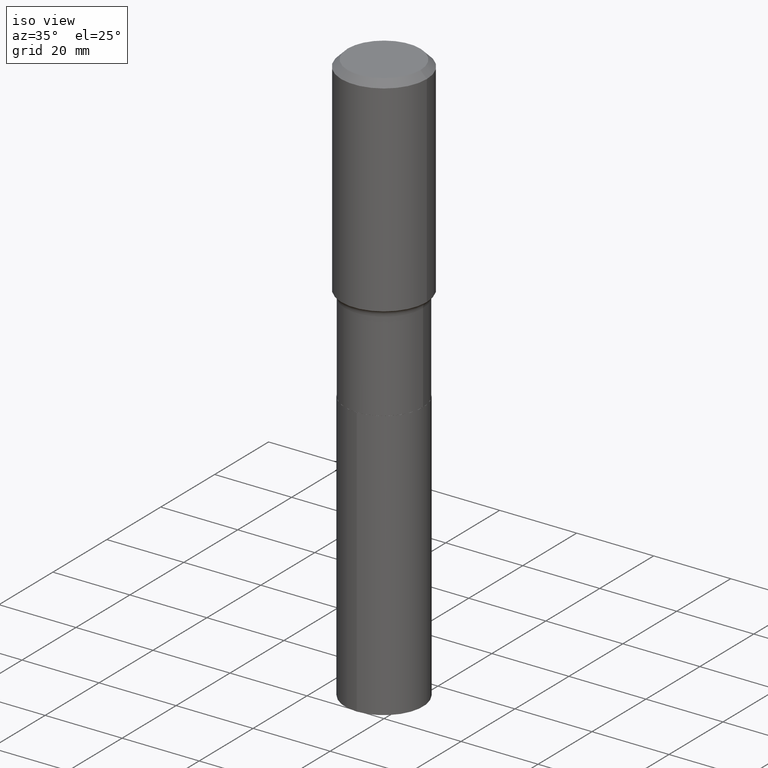
[diagram: clean part render]
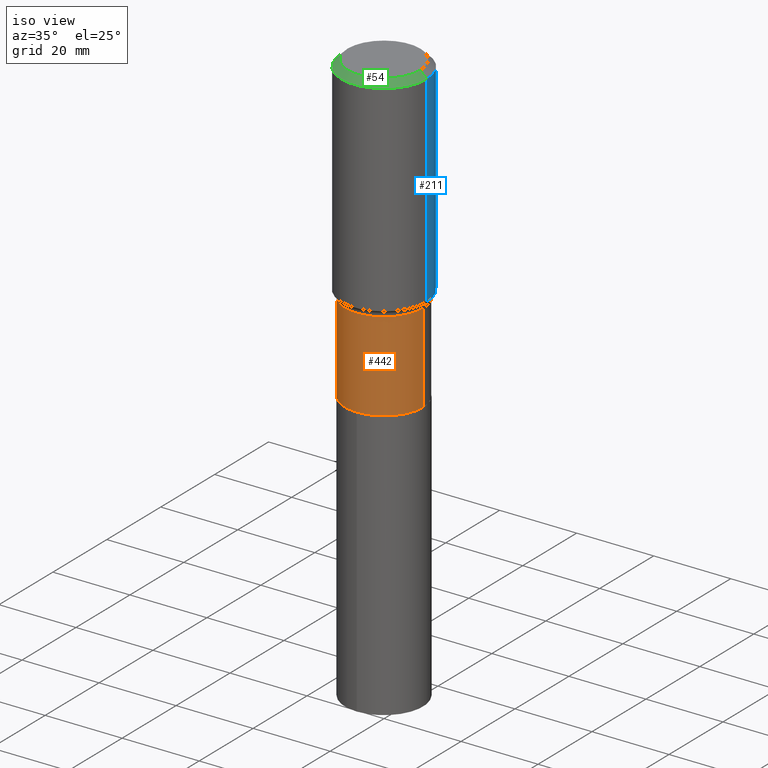
[diagram: same view with three faces highlighted in distinct colors, each labeled with its STEP entity id]
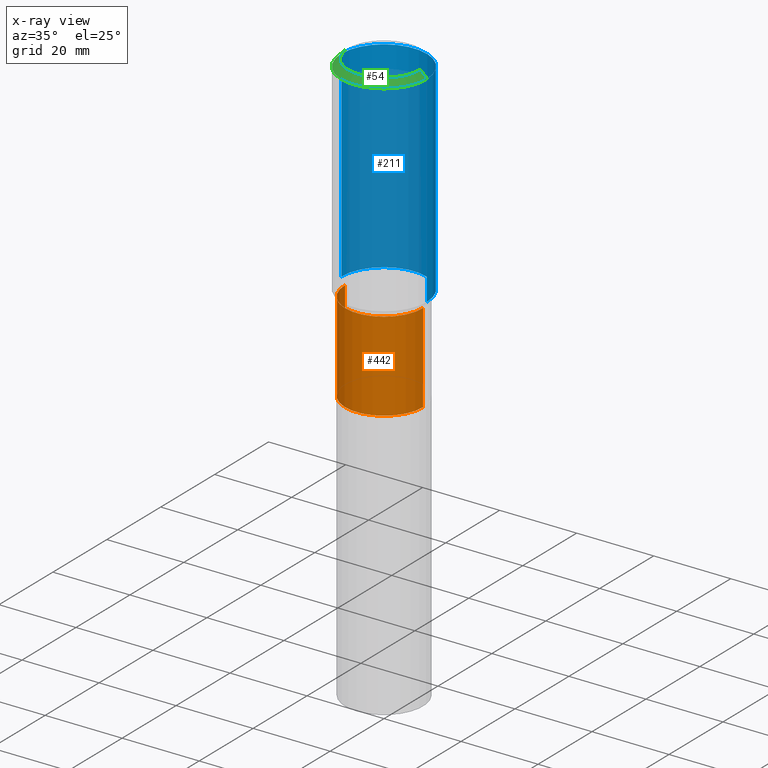
[diagram: x-ray of the same camera — body ghosted, the three highlighted faces saturated]
A machine part, iso view with three faces highlighted in distinct colors.
The next image is the same camera in x-ray (body ghosted, the three faces saturated) — at least one of them is partly hidden behind the body in this view.
Their STEP definitions:

[orange] entity #442 — the highlighted cylindrical surface (partial cylindrical patch) has radius 10.1206 mm, axis along (-0, 0, 1).
#45 = CARTESIAN_POINT ( 'NONE',  ( 0.3984499999999998598, -1.043918005500711173E-14, -2.193000000000000504 ) ) ;
#69 = DIRECTION ( 'NONE',  ( 1.000000000000000000, -6.982962677686268288E-15, 0.000000000000000000 ) ) ;
#88 = CARTESIAN_POINT ( 'NONE',  ( -0.3984500000000001374, -6.424584924570118002E-15, -3.108900000000000219 ) ) ;
#92 = CYLINDRICAL_SURFACE ( 'NONE', #461, 0.3984499999999999709 ) ;
#94 = CARTESIAN_POINT ( 'NONE',  ( 7.602717971548972402E-29, -1.085466633432945640E-14, -3.108900000000000219 ) ) ;
#105 = VERTEX_POINT ( 'NONE', #414 ) ;
#121 = CARTESIAN_POINT ( 'NONE',  ( 0.000000000000000000, 0.000000000000000000, 0.000000000000000000 ) ) ;
#126 = CARTESIAN_POINT ( 'NONE',  ( 0.3984499999999999709, -2.782361478924092573E-15, 1.942912636315890449E-29 ) ) ;
#127 = VERTEX_POINT ( 'NONE', #158 ) ;
#148 = ORIENTED_EDGE ( 'NONE', *, *, #238, .F. ) ;
#149 = LINE ( 'NONE', #192, #278 ) ;
#153 = CIRCLE ( 'NONE', #377, 0.3984499999999998598 ) ;
#158 = CARTESIAN_POINT ( 'NONE',  ( -0.3984499999999998598, -6.424584924570119580E-15, -2.193000000000000504 ) ) ;
#164 = DIRECTION ( 'NONE',  ( 1.000000000000000000, -6.982962677686265922E-15, 4.876176775795935793E-29 ) ) ;
#167 = LINE ( 'NONE', #126, #234 ) ;
#179 = EDGE_LOOP ( 'NONE', ( #213, #439, #370, #148 ) ) ;
#192 = CARTESIAN_POINT ( 'NONE',  ( -0.3984499999999999709, 2.831157530636118984E-15, -1.959949686712066901E-29 ) ) ;
#193 = EDGE_CURVE ( 'NONE', #458, #105, #233, .T. ) ;
#205 = DIRECTION ( 'NONE',  ( -2.445468806185136877E-29, 3.491481338843145188E-15, 1.000000000000000000 ) ) ;
#212 = DIRECTION ( 'NONE',  ( -2.445468806185136597E-29, 3.491481338843145583E-15, 1.000000000000000000 ) ) ;
#213 = ORIENTED_EDGE ( 'NONE', *, *, #296, .F. ) ;
#214 = AXIS2_PLACEMENT_3D ( 'NONE', #94, #325, #69 ) ;
#233 = CIRCLE ( 'NONE', #214, 0.3984500000000000819 ) ;
#234 = VECTOR ( 'NONE', #205, 39.37007874015748143 ) ;
#238 = EDGE_CURVE ( 'NONE', #127, #441, #153, .T. ) ;
#278 = VECTOR ( 'NONE', #453, 39.37007874015748143 ) ;
#296 = EDGE_CURVE ( 'NONE', #458, #127, #149, .T. ) ;
#325 = DIRECTION ( 'NONE',  ( -2.445468806185136597E-29, 3.491481338843145583E-15, 1.000000000000000000 ) ) ;
#353 = DIRECTION ( 'NONE',  ( -2.445468806185136597E-29, 3.491481338843145583E-15, 1.000000000000000000 ) ) ;
#368 = DIRECTION ( 'NONE',  ( 1.000000000000000000, -6.982962677686265133E-15, 0.000000000000000000 ) ) ;
#370 = ORIENTED_EDGE ( 'NONE', *, *, #451, .T. ) ;
#377 = AXIS2_PLACEMENT_3D ( 'NONE', #433, #212, #368 ) ;
#414 = CARTESIAN_POINT ( 'NONE',  ( 0.3984500000000000819, -1.363702781325355055E-14, -3.108900000000000219 ) ) ;
#433 = CARTESIAN_POINT ( 'NONE',  ( 5.362913091964004880E-29, -7.656818576083019153E-15, -2.193000000000000504 ) ) ;
#439 = ORIENTED_EDGE ( 'NONE', *, *, #193, .T. ) ;
#441 = VERTEX_POINT ( 'NONE', #45 ) ;
#442 = ADVANCED_FACE ( 'NONE', ( #463 ), #92, .T. ) ;
#451 = EDGE_CURVE ( 'NONE', #105, #441, #167, .T. ) ;
#453 = DIRECTION ( 'NONE',  ( -2.445468806185136877E-29, 3.491481338843145188E-15, 1.000000000000000000 ) ) ;
#458 = VERTEX_POINT ( 'NONE', #88 ) ;
#461 = AXIS2_PLACEMENT_3D ( 'NONE', #121, #353, #164 ) ;
#463 = FACE_OUTER_BOUND ( 'NONE', #179, .T. ) ;

[blue] entity #211 — the highlighted cylindrical surface (partial cylindrical patch) has radius 11.1125 mm, axis along (-0, 0, 1).
#2 = CARTESIAN_POINT ( 'NONE',  ( 0.4375000000000001110, -3.055046171487742475E-15, 2.133327339410722330E-29 ) ) ;
#33 = EDGE_CURVE ( 'NONE', #143, #281, #340, .T. ) ;
#34 = CARTESIAN_POINT ( 'NONE',  ( -0.4375000000000003331, -4.312243903027238069E-15, -2.125421175653907646 ) ) ;
#53 = CYLINDRICAL_SURFACE ( 'NONE', #183, 0.4375000000000001110 ) ;
#61 = VECTOR ( 'NONE', #242, 39.37007874015748143 ) ;
#65 = CARTESIAN_POINT ( 'NONE',  ( 5.197651185066970693E-29, -7.420868371977678749E-15, -2.125421175653907646 ) ) ;
#80 = CARTESIAN_POINT ( 'NONE',  ( -0.4375000000000000000, -7.163739484691917690E-16, -0.06562500000000044686 ) ) ;
#89 = ORIENTED_EDGE ( 'NONE', *, *, #33, .T. ) ;
#102 = LINE ( 'NONE', #140, #384 ) ;
#140 = CARTESIAN_POINT ( 'NONE',  ( -0.4375000000000001110, 3.108624468950439102E-15, -2.152034101986521805E-29 ) ) ;
#143 = VERTEX_POINT ( 'NONE', #264 ) ;
#180 = DIRECTION ( 'NONE',  ( -2.445468806185136597E-29, 3.491481338843145583E-15, 1.000000000000000000 ) ) ;
#183 = AXIS2_PLACEMENT_3D ( 'NONE', #364, #404, #248 ) ;
#197 = EDGE_CURVE ( 'NONE', #281, #409, #102, .T. ) ;
#211 = ADVANCED_FACE ( 'NONE', ( #471 ), #53, .T. ) ;
#225 = CIRCLE ( 'NONE', #430, 0.4375000000000000000 ) ;
#242 = DIRECTION ( 'NONE',  ( -2.445468806185136877E-29, 3.491481338843145188E-15, 1.000000000000000000 ) ) ;
#248 = DIRECTION ( 'NONE',  ( 1.000000000000000000, -6.982962677686266711E-15, 4.876176775795935793E-29 ) ) ;
#258 = CARTESIAN_POINT ( 'NONE',  ( 0.4375000000000000000, -3.284174634349324876E-15, -0.06562500000000044686 ) ) ;
#264 = CARTESIAN_POINT ( 'NONE',  ( 0.4375000000000003331, -1.047591454346542517E-14, -2.125421175653907646 ) ) ;
#281 = VERTEX_POINT ( 'NONE', #34 ) ;
#291 = VERTEX_POINT ( 'NONE', #258 ) ;
#307 = LINE ( 'NONE', #2, #61 ) ;
#313 = CARTESIAN_POINT ( 'NONE',  ( 1.604838904059006962E-30, -2.291284628615829930E-16, -0.06562500000000044686 ) ) ;
#315 = EDGE_LOOP ( 'NONE', ( #89, #466, #324, #398 ) ) ;
#324 = ORIENTED_EDGE ( 'NONE', *, *, #470, .F. ) ;
#330 = DIRECTION ( 'NONE',  ( -2.445468806185136877E-29, 3.491481338843145188E-15, 1.000000000000000000 ) ) ;
#340 = CIRCLE ( 'NONE', #449, 0.4375000000000002776 ) ;
#355 = DIRECTION ( 'NONE',  ( 1.000000000000000000, -6.982962677686266711E-15, 0.000000000000000000 ) ) ;
#364 = CARTESIAN_POINT ( 'NONE',  ( 0.000000000000000000, 0.000000000000000000, 0.000000000000000000 ) ) ;
#369 = DIRECTION ( 'NONE',  ( 1.000000000000000000, -6.982962677686267499E-15, 0.000000000000000000 ) ) ;
#384 = VECTOR ( 'NONE', #330, 39.37007874015748143 ) ;
#387 = DIRECTION ( 'NONE',  ( -2.445468806185136597E-29, 3.491481338843145583E-15, 1.000000000000000000 ) ) ;
#398 = ORIENTED_EDGE ( 'NONE', *, *, #467, .F. ) ;
#404 = DIRECTION ( 'NONE',  ( -2.445468806185136597E-29, 3.491481338843145583E-15, 1.000000000000000000 ) ) ;
#409 = VERTEX_POINT ( 'NONE', #80 ) ;
#430 = AXIS2_PLACEMENT_3D ( 'NONE', #313, #387, #355 ) ;
#449 = AXIS2_PLACEMENT_3D ( 'NONE', #65, #180, #369 ) ;
#466 = ORIENTED_EDGE ( 'NONE', *, *, #197, .T. ) ;
#467 = EDGE_CURVE ( 'NONE', #143, #291, #307, .T. ) ;
#470 = EDGE_CURVE ( 'NONE', #291, #409, #225, .T. ) ;
#471 = FACE_OUTER_BOUND ( 'NONE', #315, .T. ) ;

[green] entity #54 — the highlighted conical surface has half-angle 45 deg.
#3 = EDGE_CURVE ( 'NONE', #409, #291, #72, .T. ) ;
#10 = CARTESIAN_POINT ( 'NONE',  ( 1.604838904059006962E-30, -2.291284628615829930E-16, -0.06562500000000044686 ) ) ;
#17 = LINE ( 'NONE', #174, #468 ) ;
#23 = FACE_OUTER_BOUND ( 'NONE', #130, .T. ) ;
#31 = LINE ( 'NONE', #420, #141 ) ;
#37 = CONICAL_SURFACE ( 'NONE', #402, 0.4375000000000000000, 0.7853981633974447263 ) ;
#47 = ORIENTED_EDGE ( 'NONE', *, *, #207, .F. ) ;
#52 = ORIENTED_EDGE ( 'NONE', *, *, #349, .T. ) ;
#54 = ADVANCED_FACE ( 'NONE', ( #23 ), #37, .T. ) ;
#72 = CIRCLE ( 'NONE', #243, 0.4375000000000000000 ) ;
#80 = CARTESIAN_POINT ( 'NONE',  ( -0.4375000000000000000, -7.163739484691917690E-16, -0.06562500000000044686 ) ) ;
#115 = DIRECTION ( 'NONE',  ( -2.445468806185136597E-29, 3.491481338843145583E-15, 1.000000000000000000 ) ) ;
#128 = EDGE_CURVE ( 'NONE', #363, #295, #201, .T. ) ;
#130 = EDGE_LOOP ( 'NONE', ( #47, #435, #52, #407 ) ) ;
#141 = VECTOR ( 'NONE', #341, 39.37007874015748143 ) ;
#174 = CARTESIAN_POINT ( 'NONE',  ( 0.4375000000000000000, -3.230596336886627854E-15, -0.06562500000000044686 ) ) ;
#201 = CIRCLE ( 'NONE', #425, 0.3718749999999999556 ) ;
#207 = EDGE_CURVE ( 'NONE', #295, #291, #17, .T. ) ;
#210 = DIRECTION ( 'NONE',  ( 2.445468806185136597E-29, -3.491481338843145583E-15, -1.000000000000000000 ) ) ;
#217 = DIRECTION ( 'NONE',  ( 1.000000000000000000, -6.982962677686266711E-15, 0.000000000000000000 ) ) ;
#223 = CARTESIAN_POINT ( 'NONE',  ( 0.3718749999999999556, -2.890922014903958629E-15, 6.505936120489500258E-18 ) ) ;
#243 = AXIS2_PLACEMENT_3D ( 'NONE', #10, #259, #217 ) ;
#258 = CARTESIAN_POINT ( 'NONE',  ( 0.4375000000000000000, -3.284174634349324876E-15, -0.06562500000000044686 ) ) ;
#259 = DIRECTION ( 'NONE',  ( -2.445468806185136597E-29, 3.491481338843145583E-15, 1.000000000000000000 ) ) ;
#268 = DIRECTION ( 'NONE',  ( 1.000000000000000000, -6.982962677686267499E-15, 4.876184966057910179E-29 ) ) ;
#291 = VERTEX_POINT ( 'NONE', #258 ) ;
#294 = DIRECTION ( 'NONE',  ( 0.7071067811865450192, -7.319954787623246579E-15, -0.7071067811865500152 ) ) ;
#295 = VERTEX_POINT ( 'NONE', #223 ) ;
#300 = CARTESIAN_POINT ( 'NONE',  ( -1.591006383764329579E-46, 2.271535455632766759E-32, 6.505936120470313374E-18 ) ) ;
#341 = DIRECTION ( 'NONE',  ( -0.7071067811865450192, 2.468850131082230634E-15, -0.7071067811865500152 ) ) ;
#349 = EDGE_CURVE ( 'NONE', #363, #409, #31, .T. ) ;
#358 = DIRECTION ( 'NONE',  ( -1.000000000000000000, 6.982962677686266711E-15, 0.000000000000000000 ) ) ;
#363 = VERTEX_POINT ( 'NONE', #485 ) ;
#402 = AXIS2_PLACEMENT_3D ( 'NONE', #481, #210, #358 ) ;
#407 = ORIENTED_EDGE ( 'NONE', *, *, #3, .T. ) ;
#409 = VERTEX_POINT ( 'NONE', #80 ) ;
#420 = CARTESIAN_POINT ( 'NONE',  ( -0.4375000000000000000, 2.825917708626158101E-15, -0.06562500000000044686 ) ) ;
#425 = AXIS2_PLACEMENT_3D ( 'NONE', #300, #115, #268 ) ;
#435 = ORIENTED_EDGE ( 'NONE', *, *, #128, .F. ) ;
#468 = VECTOR ( 'NONE', #294, 39.37007874015748143 ) ;
#481 = CARTESIAN_POINT ( 'NONE',  ( 1.604838904059006962E-30, -2.291284628615829930E-16, -0.06562500000000044686 ) ) ;
#485 = CARTESIAN_POINT ( 'NONE',  ( -0.3718749999999999556, 2.711353477195369464E-15, 6.505936120451752031E-18 ) ) ;